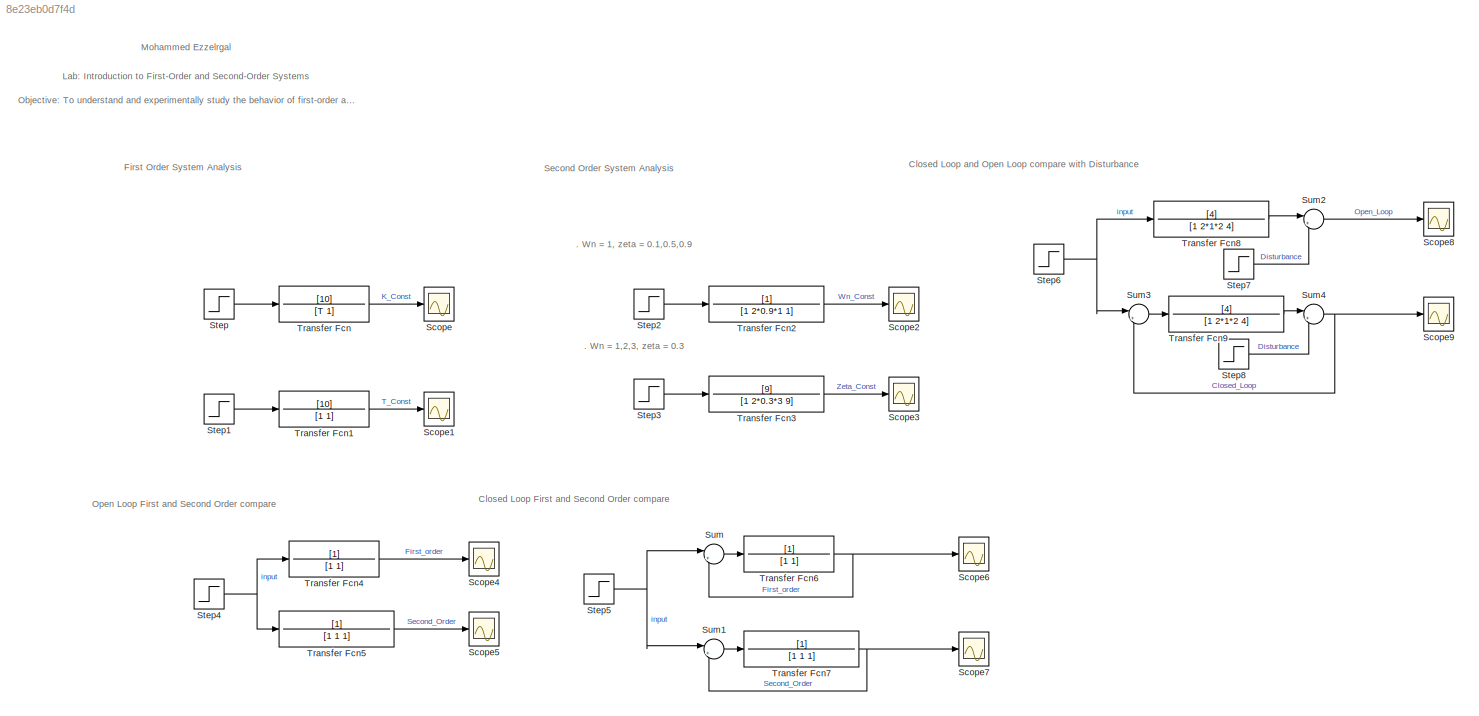
MODEL slx_8e23eb0d7f4d
KIND model
CONFIG AbsTol = auto
CONFIG EnableMultiTasking = off
CONFIG FixedStep = auto
CONFIG MaxStep = auto
CONFIG MinStep = auto
CONFIG RelTol = 1e-3
CONFIG SampleTimeConstraint = Unconstrained
CONFIG SolverName = VariableStepAuto
CONFIG StartTime = 0.0
CONFIG StopTime = 10.0
BLOCK [Scope] Scope
  Floating = off
  NumInputPorts = 1
  ScopeSpecificationString = Simulink.scopes.TimeScopeBlockCfg('CurrentConfiguration', extmgr.ConfigurationSet(extmgr.Configuration('Core','General UI',true),extmgr.Configuration('Core','Source UI',true),extmgr.Configuration('Sources','WiredSimulink',true),extmgr.Configuration('Visuals','Time Domain',true,'SerializedDisplays',{struct('MinYLimReal','-1.04338','MaxYLimReal','9.39039','YLabelReal','','MinYLimMag','0.00000','MaxY...<+1352ch>
BLOCK [Scope] Scope1
  Floating = off
  NumInputPorts = 1
  ScopeSpecificationString = Simulink.scopes.TimeScopeBlockCfg('CurrentConfiguration', extmgr.ConfigurationSet(extmgr.Configuration('Core','General UI',true),extmgr.Configuration('Core','Source UI',true),extmgr.Configuration('Sources','WiredSimulink',true,'DataLoggingVariableName','ScopeData1'),extmgr.Configuration('Visuals','Time Domain',true,'SerializedDisplays',{struct('MinYLimReal','-0.90443','MaxYLimReal','8.1399','YLabe...<+1399ch>
BLOCK [Scope] Scope2
  Floating = off
  NumInputPorts = 1
  ScopeSpecificationString = Simulink.scopes.TimeScopeBlockCfg('CurrentConfiguration', extmgr.ConfigurationSet(extmgr.Configuration('Core','General UI',true),extmgr.Configuration('Core','Source UI',true),extmgr.Configuration('Sources','WiredSimulink',true,'DataLoggingVariableName','ScopeData2'),extmgr.Configuration('Visuals','Time Domain',true,'SerializedDisplays',{struct('MinYLimReal','-1.04338','MaxYLimReal','9.39039','YLab...<+1391ch>
BLOCK [Scope] Scope3
  Floating = off
  NumInputPorts = 1
  ScopeSpecificationString = Simulink.scopes.TimeScopeBlockCfg('CurrentConfiguration', extmgr.ConfigurationSet(extmgr.Configuration('Core','General UI',true),extmgr.Configuration('Core','Source UI',true),extmgr.Configuration('Sources','WiredSimulink',true,'DataLoggingVariableName','ScopeData3'),extmgr.Configuration('Visuals','Time Domain',true,'SerializedDisplays',{struct('MinYLimReal','-1.04338','MaxYLimReal','9.39039','YLab...<+1391ch>
BLOCK [Scope] Scope4
  Floating = off
  NumInputPorts = 1
  ScopeSpecificationString = Simulink.scopes.TimeScopeBlockCfg('CurrentConfiguration', extmgr.ConfigurationSet(extmgr.Configuration('Core','General UI',true),extmgr.Configuration('Core','Source UI',true),extmgr.Configuration('Sources','WiredSimulink',true,'DataLoggingVariableName','ScopeData4'),extmgr.Configuration('Visuals','Time Domain',true,'SerializedDisplays',{struct('MinYLimReal','-1.04338','MaxYLimReal','9.39039','YLab...<+1391ch>
BLOCK [Scope] Scope5
  Floating = off
  NumInputPorts = 1
  ScopeSpecificationString = Simulink.scopes.TimeScopeBlockCfg('CurrentConfiguration', extmgr.ConfigurationSet(extmgr.Configuration('Core','General UI',true),extmgr.Configuration('Core','Source UI',true),extmgr.Configuration('Sources','WiredSimulink',true,'DataLoggingVariableName','ScopeData5'),extmgr.Configuration('Visuals','Time Domain',true,'SerializedDisplays',{struct('MinYLimReal','-1.04338','MaxYLimReal','9.39039','YLab...<+1391ch>
BLOCK [Scope] Scope6
  Floating = off
  NumInputPorts = 1
  ScopeSpecificationString = Simulink.scopes.TimeScopeBlockCfg('CurrentConfiguration', extmgr.ConfigurationSet(extmgr.Configuration('Core','General UI',true),extmgr.Configuration('Core','Source UI',true),extmgr.Configuration('Sources','WiredSimulink',true,'DataLoggingVariableName','ScopeData6'),extmgr.Configuration('Visuals','Time Domain',true,'SerializedDisplays',{struct('MinYLimReal','-1.04338','MaxYLimReal','9.39039','YLab...<+1391ch>
BLOCK [Scope] Scope7
  Floating = off
  NumInputPorts = 1
  ScopeSpecificationString = Simulink.scopes.TimeScopeBlockCfg('CurrentConfiguration', extmgr.ConfigurationSet(extmgr.Configuration('Core','General UI',true),extmgr.Configuration('Core','Source UI',true),extmgr.Configuration('Sources','WiredSimulink',true,'DataLoggingVariableName','ScopeData7'),extmgr.Configuration('Visuals','Time Domain',true,'SerializedDisplays',{struct('MinYLimReal','-1.04338','MaxYLimReal','9.39039','YLab...<+1391ch>
BLOCK [Scope] Scope8
  Floating = off
  NumInputPorts = 1
  ScopeSpecificationString = Simulink.scopes.TimeScopeBlockCfg('CurrentConfiguration', extmgr.ConfigurationSet(extmgr.Configuration('Core','General UI',true),extmgr.Configuration('Core','Source UI',true),extmgr.Configuration('Sources','WiredSimulink',true,'DataLoggingVariableName','ScopeData8'),extmgr.Configuration('Visuals','Time Domain',true,'SerializedDisplays',{struct('MinYLimReal','-1.04338','MaxYLimReal','9.39039','YLab...<+1391ch>
BLOCK [Scope] Scope9
  Floating = off
  NumInputPorts = 1
  ScopeSpecificationString = Simulink.scopes.TimeScopeBlockCfg('CurrentConfiguration', extmgr.ConfigurationSet(extmgr.Configuration('Core','General UI',true),extmgr.Configuration('Core','Source UI',true),extmgr.Configuration('Sources','WiredSimulink',true,'DataLoggingVariableName','ScopeData9'),extmgr.Configuration('Visuals','Time Domain',true,'SerializedDisplays',{struct('MinYLimReal','-1.04338','MaxYLimReal','9.39039','YLab...<+1391ch>
BLOCK [Step] Step
  SampleTime = 0
BLOCK [Step] Step1
  SampleTime = 0
BLOCK [Step] Step2
  SampleTime = 0
BLOCK [Step] Step3
  SampleTime = 0
BLOCK [Step] Step4
  SampleTime = 0
BLOCK [Step] Step5
  SampleTime = 0
BLOCK [Step] Step6
  SampleTime = 0
BLOCK [Step] Step7
  After = 1.2
  SampleTime = 0
  Time = 3
BLOCK [Step] Step8
  After = 1.2
  SampleTime = 0
  Time = 3
BLOCK [Sum] Sum
  Inputs = |+-
BLOCK [Sum] Sum1
  Inputs = |+-
BLOCK [Sum] Sum2
  Inputs = |+-
BLOCK [Sum] Sum3
  Inputs = |+-
BLOCK [Sum] Sum4
  Inputs = |+-
BLOCK [TransferFcn] Transfer Fcn
  Denominator = [T 1]
  Numerator = [10]
BLOCK [TransferFcn] Transfer Fcn1
  Denominator = [1 1]
  Numerator = [10]
BLOCK [TransferFcn] Transfer Fcn2
  Denominator = [1 2*0.9*1 1]
BLOCK [TransferFcn] Transfer Fcn3
  Denominator = [1 2*0.3*3 9]
  Numerator = [9]
BLOCK [TransferFcn] Transfer Fcn4
  Denominator = [1 1]
BLOCK [TransferFcn] Transfer Fcn5
  Denominator = [1 1 1]
BLOCK [TransferFcn] Transfer Fcn6
  Denominator = [1 1]
BLOCK [TransferFcn] Transfer Fcn7
  Denominator = [1 1 1]
BLOCK [TransferFcn] Transfer Fcn8
  Denominator = [1 2*1*2 4]
  Numerator = [4]
BLOCK [TransferFcn] Transfer Fcn9
  Denominator = [1 2*1*2 4]
  Numerator = [4]
ANNOTATION (root): Lab : Introduction to First-Order and Second-Order Systems
ANNOTATION (root): Objective: To understand and experimentally study the behavior of first-order and second-order control systems using MATLAB and Simulink.
ANNOTATION (root): Mohammed Ezzelrgal
ANNOTATION (root): . Wn = 1, zeta = 0.1,0.5,0.9
ANNOTATION (root): . Wn = 1,2,3, zeta = 0.3
ANNOTATION (root): Closed Loop and Open Loop compare with Disturbance
ANNOTATION (root): Closed Loop First and Second Order compare
ANNOTATION (root): First Order System Analysis
ANNOTATION (root): Open Loop First and Second Order compare
ANNOTATION (root): Second Order System Analysis
LINE Step1:1 -> Transfer Fcn1:1
LINE Step2:1 -> Transfer Fcn2:1
LINE Step3:1 -> Transfer Fcn3:1
NET Step4:1 -> Transfer Fcn4:1, Transfer Fcn5:1
NET Step5:1 -> Sum1:1, Sum:1
NET Step6:1 -> Sum3:1, Transfer Fcn8:1
LINE Step7:1 -> Sum2:2
LINE Step8:1 -> Sum4:2
LINE Step:1 -> Transfer Fcn:1
LINE Sum1:1 -> Transfer Fcn7:1
LINE Sum2:1 -> Scope8:1
LINE Sum3:1 -> Transfer Fcn9:1
NET Sum4:1 -> Scope9:1, Sum3:2
LINE Sum:1 -> Transfer Fcn6:1
LINE Transfer Fcn1:1 -> Scope1:1
LINE Transfer Fcn2:1 -> Scope2:1
LINE Transfer Fcn3:1 -> Scope3:1
LINE Transfer Fcn4:1 -> Scope4:1
LINE Transfer Fcn5:1 -> Scope5:1
NET Transfer Fcn6:1 -> Scope6:1, Sum:2
NET Transfer Fcn7:1 -> Scope7:1, Sum1:2
LINE Transfer Fcn8:1 -> Sum2:1
LINE Transfer Fcn9:1 -> Sum4:1
LINE Transfer Fcn:1 -> Scope:1
note: NET lines group one-source signal fan-out (src -> all destinations, sorted); 1:1 wires keep LINE
